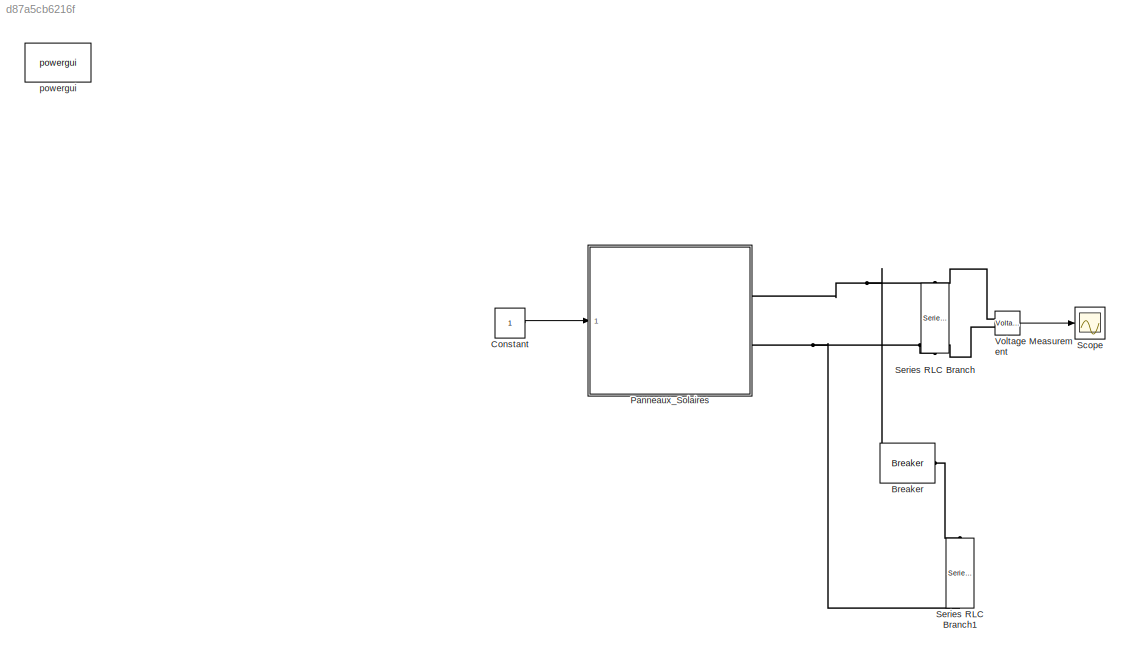
MODEL slx_d87a5cb6216f
KIND model
BLOCK [Reference] Breaker  REF=powerlib/Elements/Breaker
  BreakerResistance = 0.01
  External = off
  InitialState = 0
  Measurements = None
  MoreParameters = on
  NoBreakLoop = off
  Ports = [0, 0, 0, 0, 0, 1, 1]
  SnubberCapacitance = inf
  SnubberResistance = 1e6
  SourceBlock = powerlib/Elements/Breaker
  SourceType = Breaker
  SwitchingTimes = [1/2]
BLOCK [Constant] Constant
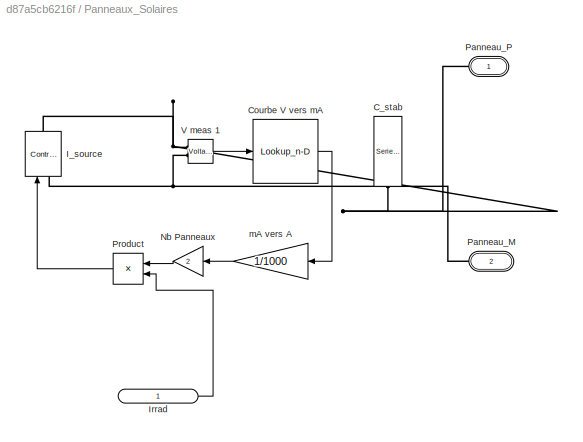
BLOCK [SubSystem] Panneaux_Solaires
  Ports = [1, 0, 0, 0, 0, 0, 2]
  RequestExecContextInheritance = off
BLOCK [Reference] Panneaux_Solaires/C_stab  REF=powerlib/Elements/Series RLC Branch
  BranchType = C
  Capacitance = 1e-9
  Inductance = 1e-3
  InitialCurrent = 0
  InitialVoltage = 1
  LConnTagsString = __new0
  Measurements = None
  Ports = [0, 0, 0, 0, 0, 1, 1]
  RConnTagsString = __new0
  Resistance = 1
  SetiL0 = off
  Setx0 = off
  SourceBlock = powerlib/Elements/Series RLC Branch
  SourceType = Series RLC Branch
BLOCK [Lookup_n-D] Panneaux_Solaires/Courbe V vers mA
  BreakpointsForDimension1 = rev_voltage
  InternalRulePriority = Speed
  NumberOfTableDimensions = 1
  Ports = [1, 1]
  RndMeth = Simplest
  Table = rev_current
  UseLastTableValue = on
BLOCK [Reference] Panneaux_Solaires/I_source  REF=powerlib/Electrical
Sources/Controlled Current Source
  Amplitude = 0
  Frequency = 0
  Initialize = off
  Measurements = None
  Phase = 0
  Ports = [1, 0, 0, 0, 0, 1, 1]
  SourceBlock = powerlib/Electrical\nSources/Controlled Current Source
  SourceType = Controlled Current Source
  Source_Type = DC
BLOCK [Inport] Panneaux_Solaires/Irrad
  IconDisplay = Port number
BLOCK [Gain] Panneaux_Solaires/Nb Panneaux
  Gain = 2
  OutDataTypeStr = Inherit: Inherit via internal rule
  ParamDataTypeStr = Inherit: Inherit via internal rule
  SaturateOnIntegerOverflow = off
BLOCK [PMIOPort] Panneaux_Solaires/Panneau_M
  Port = 2
  Side = Right
BLOCK [PMIOPort] Panneaux_Solaires/Panneau_P
  Port = 1
  Side = Right
BLOCK [Product] Panneaux_Solaires/Product
  InputSameDT = off
  OutDataTypeStr = Inherit: Inherit via internal rule
  Ports = [2, 1]
  RndMeth = Floor
  SaturateOnIntegerOverflow = off
BLOCK [Reference] Panneaux_Solaires/V meas 1  REF=powerlib/Measurements/Voltage Measurement
  OutputType = Complex
  PSBequivalent = 0
  PhasorSimulation = off
  Ports = [0, 1, 0, 0, 0, 2]
  SourceBlock = powerlib/Measurements/Voltage Measurement
  SourceType = Voltage Measurement
  UserDataPersistent = on
BLOCK [Gain] Panneaux_Solaires/mA vers A
  Gain = 1/1000
  OutDataTypeStr = Inherit: Inherit via internal rule
  ParamDataTypeStr = Inherit: Inherit via internal rule
  SaturateOnIntegerOverflow = off
BLOCK [Scope] Scope
  DataFormat = StructureWithTime
  Floating = off
  NumInputPorts = 1
  Ports = [1]
  SampleTime = 0
  ShowLegends = off
  ZoomMode = xonly
BLOCK [Reference] Series RLC Branch  REF=powerlib/Elements/Series RLC Branch
  BranchType = R
  Capacitance = 1e-6
  Inductance = 1e-3
  InitialCurrent = 0
  InitialVoltage = 0
  LConnTagsString = __new0
  Measurements = None
  Ports = [0, 0, 0, 0, 0, 1, 1]
  RConnTagsString = __new0
  Resistance = 1000
  SetiL0 = off
  Setx0 = off
  SourceBlock = powerlib/Elements/Series RLC Branch
  SourceType = Series RLC Branch
BLOCK [Reference] Series RLC Branch1  REF=powerlib/Elements/Series RLC Branch
  BranchType = R
  Capacitance = 1e-6
  Inductance = 1e-3
  InitialCurrent = 0
  InitialVoltage = 0
  LConnTagsString = __new0
  Measurements = None
  Ports = [0, 0, 0, 0, 0, 1, 1]
  RConnTagsString = __new0
  Resistance = 50
  SetiL0 = off
  Setx0 = off
  SourceBlock = powerlib/Elements/Series RLC Branch
  SourceType = Series RLC Branch
BLOCK [Reference] Voltage Measurement  REF=powerlib/Measurements/Voltage Measurement
  OutputType = Complex
  PSBequivalent = 0
  PhasorSimulation = off
  Ports = [0, 1, 0, 0, 0, 2]
  SourceBlock = powerlib/Measurements/Voltage Measurement
  SourceType = Voltage Measurement
  UserDataPersistent = on
BLOCK [Reference] powergui  REF=powerlib/powergui
  DisableRonSwitches = off
  DisableSnubberDevices = off
  DisableVfSwitches = off
  DisplayEquations = off
  DisplayStyle = 1
  EnableUseOfTLC = off
  ErrMax = 1e-4
  Frange = [0:2:500]
  FreqAxis = off
  FunctionMessages = off
  HookPort = off
  Interpol = off
  Iterations = 50
  MaxFrequency = 1000
  Pbase = 100e6
  Ports = []
  Priority = 1
  ResistiveCurrentMeasurement = off
  RestoreLinks = warning
  RmsSteady = 1
  SPID = off
  SampleTime = 11e-6
  ShowGrid = off
  SolverType = Tustin
  SourceBlock = powerlib/powergui
  SourceType = PSB option menu block
  StartTime = 0.0
  SwTol = 0
  Ts = 0
  UnitsV = kV
  UnitsW = MW
  UserDataPersistent = on
  Xlog = on
  Ylog = off
  ZoomFFT = on
  cycles = 1
  display = off
  echomessages = off
  frequency = 60
  frequencyindice = 0
  frequencyindicesteady = 1
  fundamental = 60
  methode = off
  save = off
  structure = 0
  variable = ZData
  x0status = blocks
LINE Constant:1 -> Panneaux_Solaires:1
LINE Panneaux_Solaires/Courbe V vers mA:1 -> Panneaux_Solaires/mA vers A:1
LINE Panneaux_Solaires/Irrad:1 -> Panneaux_Solaires/Product:2
LINE Panneaux_Solaires/Nb Panneaux:1 -> Panneaux_Solaires/Product:1
LINE Panneaux_Solaires/Product:1 -> Panneaux_Solaires/I_source:1
LINE Panneaux_Solaires/V meas 1:1 -> Panneaux_Solaires/Courbe V vers mA:1
LINE Panneaux_Solaires/mA vers A:1 -> Panneaux_Solaires/Nb Panneaux:1
LINE Voltage Measurement:1 -> Scope:1
PNET net1: Breaker:LConn1 -- Panneaux_Solaires:RConn1 -- Series RLC Branch:LConn1 -- Voltage Measurement:LConn1
PLINE Breaker:RConn1 -- Series RLC Branch1:LConn1
PNET net2: Panneaux_Solaires/C_stab:LConn1 -- Panneaux_Solaires/I_source:RConn1 -- Panneaux_Solaires/Panneau_P:RConn1 -- Panneaux_Solaires/V meas 1:LConn1
PNET net3: Panneaux_Solaires/C_stab:RConn1 -- Panneaux_Solaires/I_source:LConn1 -- Panneaux_Solaires/Panneau_M:RConn1 -- Panneaux_Solaires/V meas 1:LConn2
PNET net4: Panneaux_Solaires:RConn2 -- Series RLC Branch1:RConn1 -- Series RLC Branch:RConn1 -- Voltage Measurement:LConn2
note: PNET lines group multi-terminal physical nets as a canonical sorted terminal list (undirected conserving connections); 2-terminal nets keep the pairwise PLINE form
